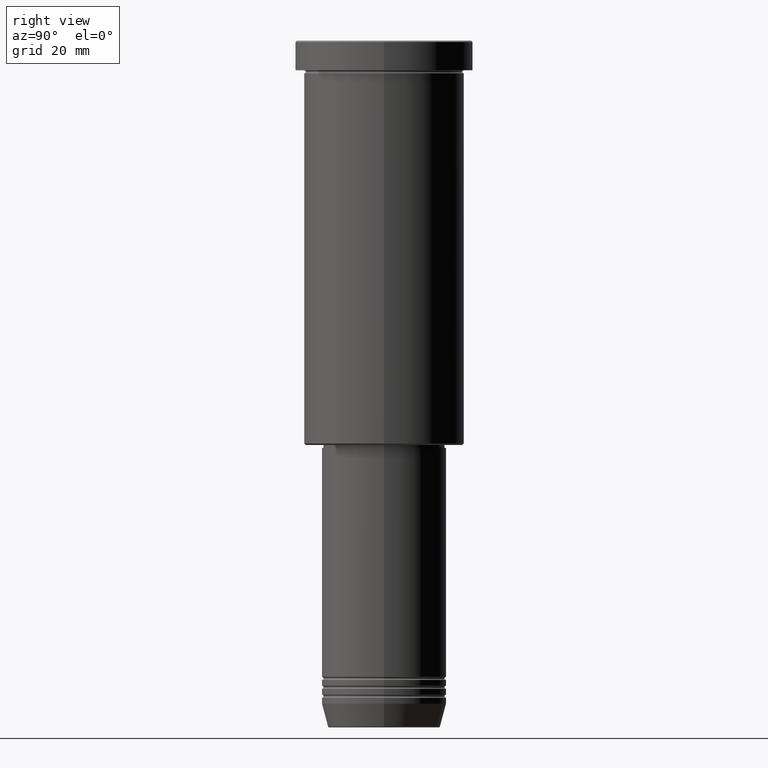
[diagram: clean part render]
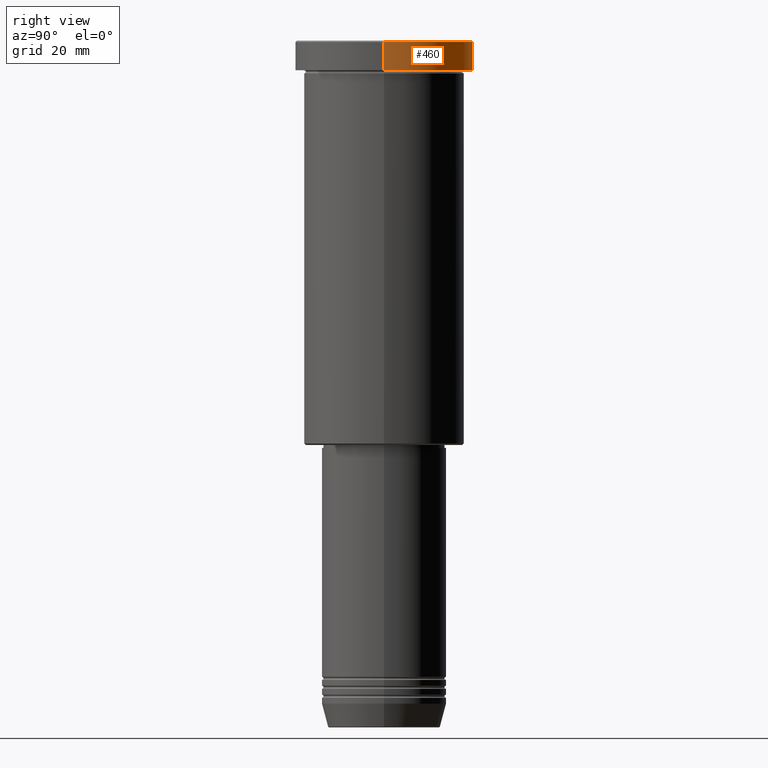
[diagram: same view with one face highlighted and labeled with its STEP entity id]
A machine part, right view. The second image highlights one B-rep face of the part: STEP entity #460.
In plain terms, the highlighted cylindrical surface (partial cylindrical patch) has radius 30 mm, axis along (-0, -0, 1).
Its self-contained STEP definition (entity closure, byte-faithful):
#11 = CIRCLE ( 'NONE', #515, 30.00000000000000000 ) ;
#40 = DIRECTION ( 'NONE',  ( -0.000000000000000000, -0.000000000000000000, 1.000000000000000000 ) ) ;
#74 = VECTOR ( 'NONE', #826, 1000.000000000000000 ) ;
#133 = ORIENTED_EDGE ( 'NONE', *, *, #927, .T. ) ;
#138 = CARTESIAN_POINT ( 'NONE',  ( 0.000000000000000000, 0.000000000000000000, -9.999999999999992895 ) ) ;
#139 = ORIENTED_EDGE ( 'NONE', *, *, #214, .T. ) ;
#152 = EDGE_CURVE ( 'NONE', #1111, #1124, #738, .T. ) ;
#201 = LINE ( 'NONE', #945, #497 ) ;
#214 = EDGE_CURVE ( 'NONE', #864, #702, #11, .T. ) ;
#216 = DIRECTION ( 'NONE',  ( 1.000000000000000000, 0.000000000000000000, 0.000000000000000000 ) ) ;
#350 = DIRECTION ( 'NONE',  ( 0.000000000000000000, 0.000000000000000000, -1.000000000000000000 ) ) ;
#444 = DIRECTION ( 'NONE',  ( 1.000000000000000000, 0.000000000000000000, 0.000000000000000000 ) ) ;
#460 = ADVANCED_FACE ( 'NONE', ( #496 ), #859, .T. ) ;
#496 = FACE_OUTER_BOUND ( 'NONE', #934, .T. ) ;
#497 = VECTOR ( 'NONE', #933, 1000.000000000000000 ) ;
#515 = AXIS2_PLACEMENT_3D ( 'NONE', #555, #350, #444 ) ;
#555 = CARTESIAN_POINT ( 'NONE',  ( 0.000000000000000000, 0.000000000000000000, -0.5000000000000350830 ) ) ;
#639 = AXIS2_PLACEMENT_3D ( 'NONE', #138, #688, #1038 ) ;
#688 = DIRECTION ( 'NONE',  ( -0.000000000000000000, -0.000000000000000000, 1.000000000000000000 ) ) ;
#702 = VERTEX_POINT ( 'NONE', #759 ) ;
#712 = CARTESIAN_POINT ( 'NONE',  ( 30.00000000000000000, 0.000000000000000000, -9.999999999999992895 ) ) ;
#717 = ORIENTED_EDGE ( 'NONE', *, *, #720, .F. ) ;
#720 = EDGE_CURVE ( 'NONE', #1111, #702, #930, .T. ) ;
#738 = CIRCLE ( 'NONE', #639, 30.00000000000000000 ) ;
#759 = CARTESIAN_POINT ( 'NONE',  ( 30.00000000000000000, 0.000000000000000000, -0.5000000000000350830 ) ) ;
#762 = CARTESIAN_POINT ( 'NONE',  ( -30.00000000000000000, 3.673940397442059178E-15, -9.999999999999992895 ) ) ;
#790 = ORIENTED_EDGE ( 'NONE', *, *, #152, .T. ) ;
#826 = DIRECTION ( 'NONE',  ( -0.000000000000000000, -0.000000000000000000, 1.000000000000000000 ) ) ;
#835 = CARTESIAN_POINT ( 'NONE',  ( 30.00000000000000000, 0.000000000000000000, 0.000000000000000000 ) ) ;
#859 = CYLINDRICAL_SURFACE ( 'NONE', #1066, 30.00000000000000000 ) ;
#864 = VERTEX_POINT ( 'NONE', #1033 ) ;
#927 = EDGE_CURVE ( 'NONE', #1124, #864, #201, .T. ) ;
#930 = LINE ( 'NONE', #835, #74 ) ;
#933 = DIRECTION ( 'NONE',  ( -0.000000000000000000, -0.000000000000000000, 1.000000000000000000 ) ) ;
#934 = EDGE_LOOP ( 'NONE', ( #790, #133, #139, #717 ) ) ;
#945 = CARTESIAN_POINT ( 'NONE',  ( -30.00000000000000000, 3.673940397442059178E-15, 0.000000000000000000 ) ) ;
#1033 = CARTESIAN_POINT ( 'NONE',  ( -30.00000000000000000, 3.673940397442059178E-15, -0.5000000000000350830 ) ) ;
#1038 = DIRECTION ( 'NONE',  ( 1.000000000000000000, 0.000000000000000000, 0.000000000000000000 ) ) ;
#1042 = CARTESIAN_POINT ( 'NONE',  ( 0.000000000000000000, 0.000000000000000000, 0.000000000000000000 ) ) ;
#1066 = AXIS2_PLACEMENT_3D ( 'NONE', #1042, #40, #216 ) ;
#1111 = VERTEX_POINT ( 'NONE', #712 ) ;
#1124 = VERTEX_POINT ( 'NONE', #762 ) ;